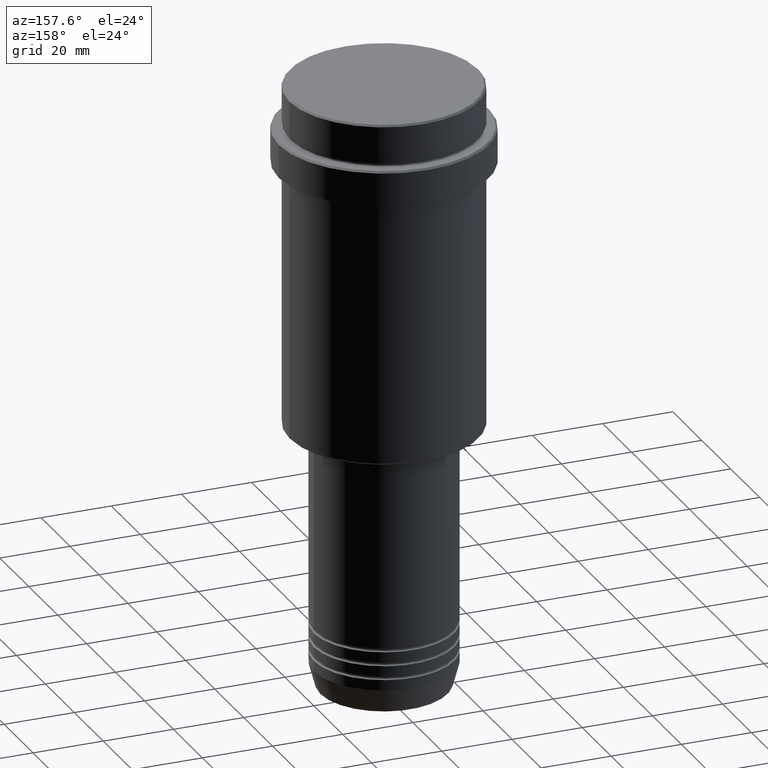
[diagram: clean part render]
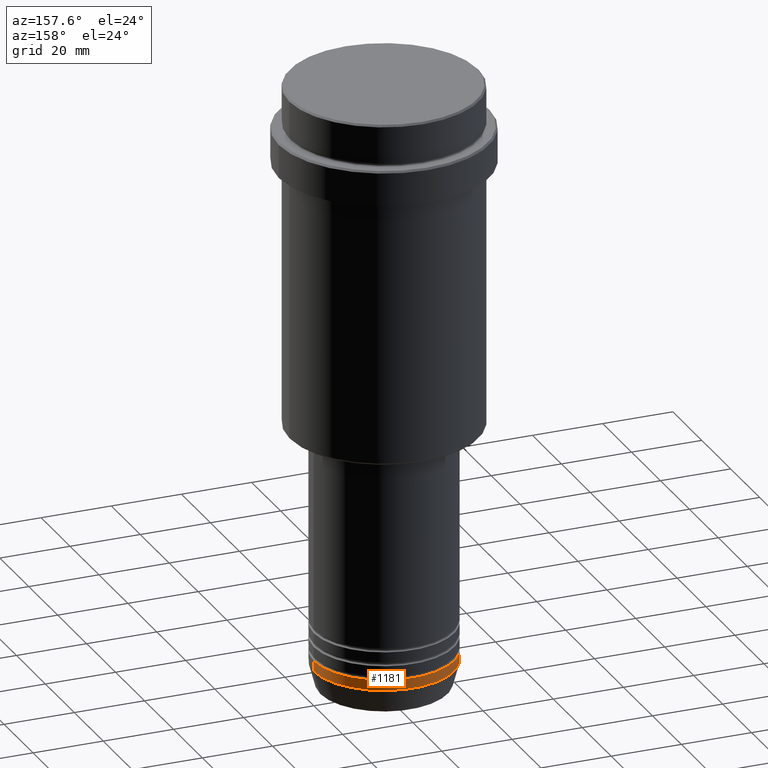
[diagram: same view with one face highlighted and labeled with its STEP entity id]
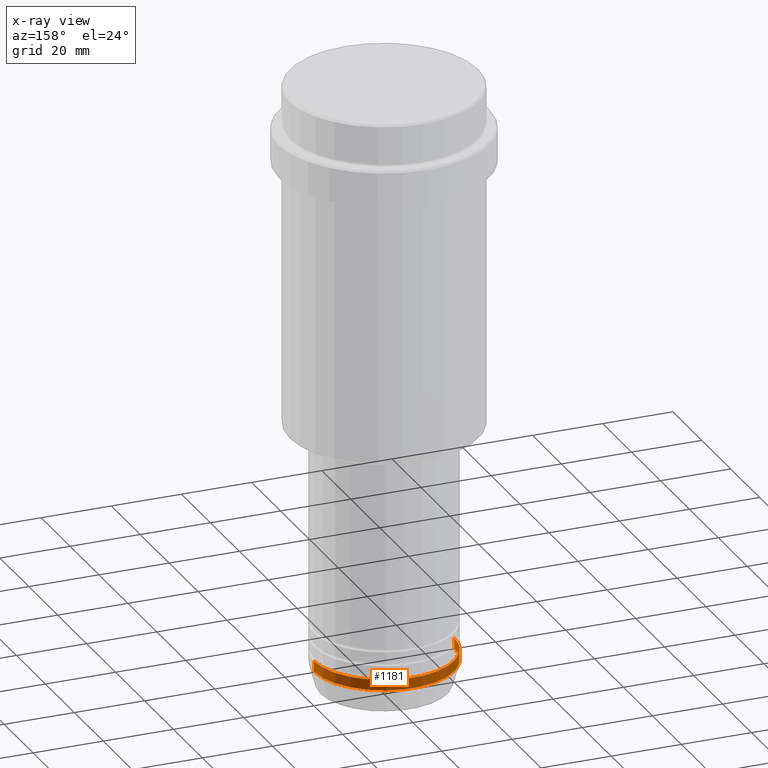
[diagram: x-ray of the same camera — body ghosted, the highlighted face saturated]
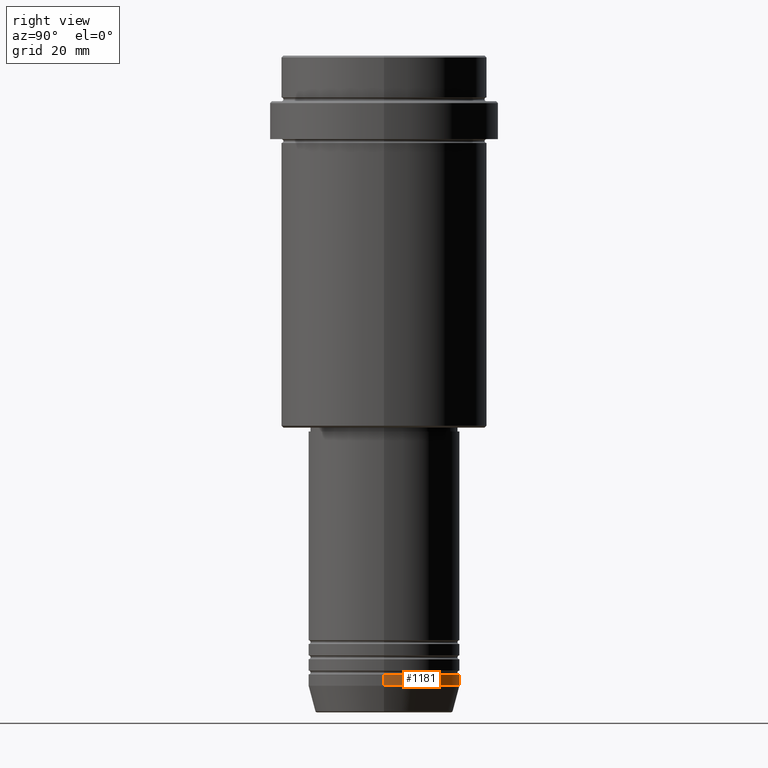
[diagram: same view with one face highlighted and labeled with its STEP entity id]
A machine part, auxiliary view. The second image highlights one B-rep face of the part: STEP entity #1181.
The next image is the same camera in x-ray: the body ghosted, the highlighted face saturated — about 0% of this face is hidden behind the body in this view.
A second angle (right view) of the same face is appended — the face is thin or edge-on in the first view.
In plain terms, the highlighted cylindrical surface (partial cylindrical patch) has radius 20 mm, axis along (-0, -0, 1).
Its self-contained STEP definition (entity closure, byte-faithful):
#21 = VECTOR ( 'NONE', #736, 1000.000000000000000 ) ;
#36 = CARTESIAN_POINT ( 'NONE',  ( 0.000000000000000000, 0.000000000000000000, 0.000000000000000000 ) ) ;
#38 = CARTESIAN_POINT ( 'NONE',  ( 20.00000000000000000, 0.000000000000000000, -163.0000000000000000 ) ) ;
#58 = CARTESIAN_POINT ( 'NONE',  ( -20.00000000000000000, 2.449293598294706513E-15, -166.0000000000000000 ) ) ;
#90 = EDGE_LOOP ( 'NONE', ( #1242, #1236, #646, #106 ) ) ;
#93 = CARTESIAN_POINT ( 'NONE',  ( 20.00000000000000000, 0.000000000000000000, -166.0000000000000000 ) ) ;
#106 = ORIENTED_EDGE ( 'NONE', *, *, #643, .F. ) ;
#116 = AXIS2_PLACEMENT_3D ( 'NONE', #36, #479, #1361 ) ;
#180 = DIRECTION ( 'NONE',  ( 1.000000000000000000, 0.000000000000000000, 0.000000000000000000 ) ) ;
#216 = VERTEX_POINT ( 'NONE', #38 ) ;
#225 = AXIS2_PLACEMENT_3D ( 'NONE', #1290, #1182, #180 ) ;
#256 = LINE ( 'NONE', #282, #21 ) ;
#273 = CIRCLE ( 'NONE', #1092, 20.00000000000000000 ) ;
#282 = CARTESIAN_POINT ( 'NONE',  ( -20.00000000000000000, 2.449293598294706513E-15, 0.000000000000000000 ) ) ;
#360 = LINE ( 'NONE', #461, #1068 ) ;
#381 = EDGE_CURVE ( 'NONE', #1270, #406, #1024, .T. ) ;
#382 = DIRECTION ( 'NONE',  ( 1.000000000000000000, 0.000000000000000000, 0.000000000000000000 ) ) ;
#406 = VERTEX_POINT ( 'NONE', #58 ) ;
#461 = CARTESIAN_POINT ( 'NONE',  ( 20.00000000000000000, 0.000000000000000000, 0.000000000000000000 ) ) ;
#479 = DIRECTION ( 'NONE',  ( -0.000000000000000000, -0.000000000000000000, 1.000000000000000000 ) ) ;
#585 = FACE_OUTER_BOUND ( 'NONE', #90, .T. ) ;
#643 = EDGE_CURVE ( 'NONE', #1270, #216, #360, .T. ) ;
#646 = ORIENTED_EDGE ( 'NONE', *, *, #726, .F. ) ;
#726 = EDGE_CURVE ( 'NONE', #216, #903, #273, .T. ) ;
#736 = DIRECTION ( 'NONE',  ( -0.000000000000000000, -0.000000000000000000, 1.000000000000000000 ) ) ;
#761 = EDGE_CURVE ( 'NONE', #406, #903, #256, .T. ) ;
#903 = VERTEX_POINT ( 'NONE', #1370 ) ;
#926 = CARTESIAN_POINT ( 'NONE',  ( 0.000000000000000000, 0.000000000000000000, -163.0000000000000000 ) ) ;
#1012 = CYLINDRICAL_SURFACE ( 'NONE', #116, 20.00000000000000000 ) ;
#1024 = CIRCLE ( 'NONE', #225, 20.00000000000000000 ) ;
#1068 = VECTOR ( 'NONE', #1129, 1000.000000000000000 ) ;
#1092 = AXIS2_PLACEMENT_3D ( 'NONE', #926, #1362, #382 ) ;
#1129 = DIRECTION ( 'NONE',  ( -0.000000000000000000, -0.000000000000000000, 1.000000000000000000 ) ) ;
#1181 = ADVANCED_FACE ( 'NONE', ( #585 ), #1012, .T. ) ;
#1182 = DIRECTION ( 'NONE',  ( -0.000000000000000000, -0.000000000000000000, 1.000000000000000000 ) ) ;
#1236 = ORIENTED_EDGE ( 'NONE', *, *, #761, .T. ) ;
#1242 = ORIENTED_EDGE ( 'NONE', *, *, #381, .T. ) ;
#1270 = VERTEX_POINT ( 'NONE', #93 ) ;
#1290 = CARTESIAN_POINT ( 'NONE',  ( 0.000000000000000000, 0.000000000000000000, -166.0000000000000000 ) ) ;
#1361 = DIRECTION ( 'NONE',  ( 1.000000000000000000, 0.000000000000000000, 0.000000000000000000 ) ) ;
#1362 = DIRECTION ( 'NONE',  ( -0.000000000000000000, -0.000000000000000000, 1.000000000000000000 ) ) ;
#1370 = CARTESIAN_POINT ( 'NONE',  ( -20.00000000000000000, 2.449293598294706513E-15, -163.0000000000000000 ) ) ;